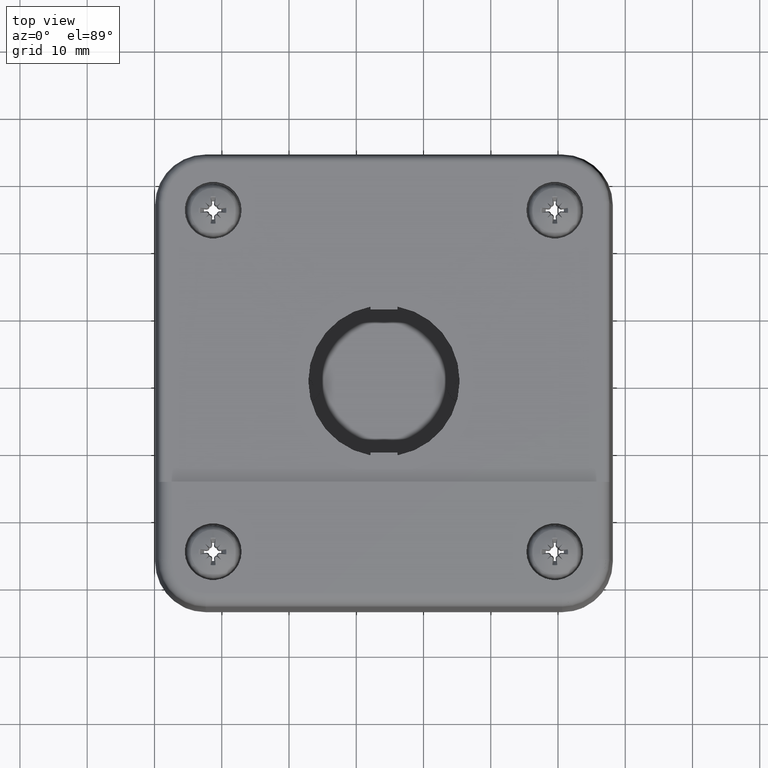
[diagram: clean part render]
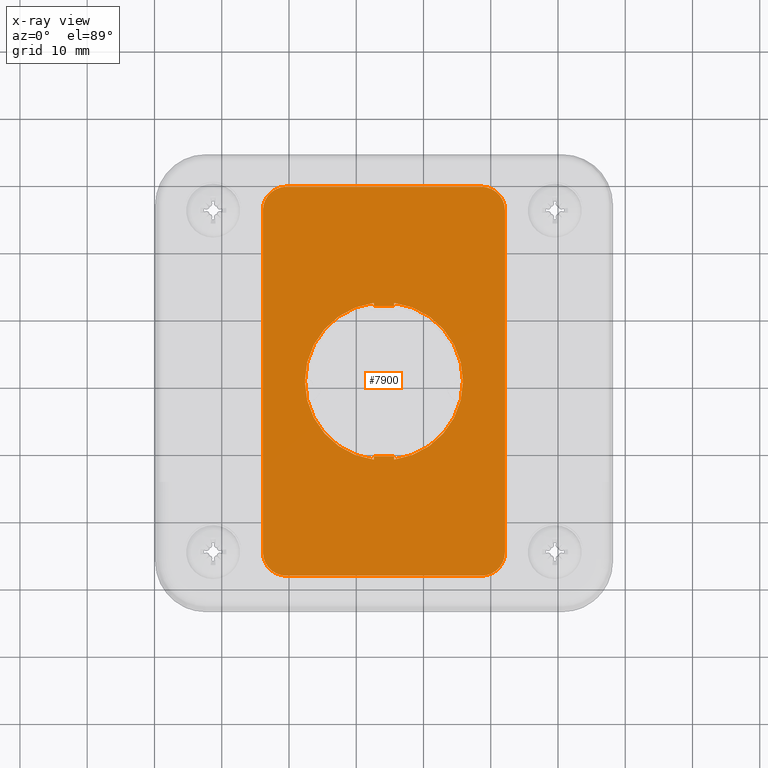
[diagram: x-ray — body ghosted, one internal face saturated and labeled with its STEP entity id]
A machine part, top view, then the same camera in x-ray: the body is ghosted and one INTERNAL B-rep face — a face not visible from any outside direction — is saturated and labeled: STEP entity #7900.
In plain terms, the highlighted planar face has unit normal (0, -0, -1).
Its self-contained STEP definition (entity closure, byte-faithful):
#6440=CARTESIAN_POINT('',(-18.933605584055147,-27.638618122439304,2.899999999999998));
#6441=VERTEX_POINT('',#6440);
#6448=CARTESIAN_POINT('',(-15.433605584055147,-31.138618122439304,2.899999999999998));
#6449=VERTEX_POINT('',#6448);
#6450=CARTESIAN_POINT('',(-15.433605584055147,-27.638618122439304,2.899999999999998));
#6451=DIRECTION('',(0.0,0.0,-1.0));
#6452=DIRECTION('',(1.0,0.0,0.0));
#6453=AXIS2_PLACEMENT_3D('',#6450,#6451,#6452);
#6454=CIRCLE('',#6453,3.499999999999996);
#6455=EDGE_CURVE('',#6441,#6449,#6454,.F.);
#7211=CARTESIAN_POINT('',(-2.433605584055146,9.438962329751092,2.899999999999999));
#7212=VERTEX_POINT('',#7211);
#7213=CARTESIAN_POINT('',(-2.433605584055146,8.935100308944428,2.899999999999999));
#7214=VERTEX_POINT('',#7213);
#7215=CARTESIAN_POINT('',(-2.433605584055146,9.438962329751092,2.899999999999999));
#7216=DIRECTION('',(0.0,-1.0,0.0));
#7217=VECTOR('',#7216,0.503862020806665);
#7218=LINE('',#7215,#7217);
#7219=EDGE_CURVE('',#7212,#7214,#7218,.T.);
#7242=CARTESIAN_POINT('',(-2.433605584055150,-13.868761711862238,2.899999999999999));
#7243=VERTEX_POINT('',#7242);
#7244=CARTESIAN_POINT('',(-0.933605584055148,-2.214899691055574,2.899999999999999));
#7245=DIRECTION('',(0.0,0.0,-1.000000000000000));
#7246=DIRECTION('',(0.177777777777778,0.984070658910424,0.0));
#7247=AXIS2_PLACEMENT_3D('',#7244,#7245,#7246);
#7248=CIRCLE('',#7247,11.750000000000002);
#7249=EDGE_CURVE('',#7243,#7212,#7248,.T.);
#7267=CARTESIAN_POINT('',(-2.433605584055150,-13.364899691055570,2.899999999999999));
#7268=VERTEX_POINT('',#7267);
#7269=CARTESIAN_POINT('',(-2.433605584055150,-13.364899691055570,2.899999999999999));
#7270=DIRECTION('',(0.0,-1.0,0.0));
#7271=VECTOR('',#7270,0.503862020806668);
#7272=LINE('',#7269,#7271);
#7273=EDGE_CURVE('',#7268,#7243,#7272,.T.);
#7291=CARTESIAN_POINT('',(0.566394415944849,-13.364899691055573,2.899999999999999));
#7292=VERTEX_POINT('',#7291);
#7293=CARTESIAN_POINT('',(0.566394415944849,-13.364899691055573,2.899999999999999));
#7294=DIRECTION('',(-1.0,0.0,0.0));
#7295=VECTOR('',#7294,2.999999999999999);
#7296=LINE('',#7293,#7295);
#7297=EDGE_CURVE('',#7292,#7268,#7296,.T.);
#7315=CARTESIAN_POINT('',(0.566394415944849,-13.868761711862238,2.899999999999999));
#7316=VERTEX_POINT('',#7315);
#7317=CARTESIAN_POINT('',(0.566394415944849,-13.868761711862238,2.899999999999999));
#7318=DIRECTION('',(0.0,1.0,0.0));
#7319=VECTOR('',#7318,0.503862020806665);
#7320=LINE('',#7317,#7319);
#7321=EDGE_CURVE('',#7316,#7292,#7320,.T.);
#7339=CARTESIAN_POINT('',(0.566394415944854,9.438962329751089,2.899999999999999));
#7340=VERTEX_POINT('',#7339);
#7341=CARTESIAN_POINT('',(-0.933605584055148,-2.214899691055574,2.899999999999999));
#7342=DIRECTION('',(0.0,0.0,-1.000000000000000));
#7343=DIRECTION('',(-0.177777777777778,-0.984070658910424,0.0));
#7344=AXIS2_PLACEMENT_3D('',#7341,#7342,#7343);
#7345=CIRCLE('',#7344,11.749999999999998);
#7346=EDGE_CURVE('',#7340,#7316,#7345,.T.);
#7364=CARTESIAN_POINT('',(0.566394415944854,8.935100308944428,2.899999999999999));
#7365=VERTEX_POINT('',#7364);
#7366=CARTESIAN_POINT('',(0.566394415944854,8.935100308944428,2.899999999999999));
#7367=DIRECTION('',(0.0,1.0,0.0));
#7368=VECTOR('',#7367,0.503862020806661);
#7369=LINE('',#7366,#7368);
#7370=EDGE_CURVE('',#7365,#7340,#7369,.T.);
#7388=CARTESIAN_POINT('',(-2.433605584055146,8.935100308944428,2.899999999999999));
#7389=DIRECTION('',(1.0,0.0,0.0));
#7390=VECTOR('',#7389,2.999999999999999);
#7391=LINE('',#7388,#7390);
#7392=EDGE_CURVE('',#7214,#7365,#7391,.T.);
#7694=CARTESIAN_POINT('',(13.566394415944849,-31.138618122439304,2.899999999999998));
#7695=VERTEX_POINT('',#7694);
#7702=CARTESIAN_POINT('',(17.066394415944849,-27.638618122439304,2.899999999999998));
#7703=VERTEX_POINT('',#7702);
#7704=CARTESIAN_POINT('',(13.566394415944849,-27.638618122439304,2.899999999999998));
#7705=DIRECTION('',(0.0,0.0,-1.0));
#7706=DIRECTION('',(0.0,1.0,0.0));
#7707=AXIS2_PLACEMENT_3D('',#7704,#7705,#7706);
#7708=CIRCLE('',#7707,3.499999999999998);
#7709=EDGE_CURVE('',#7695,#7703,#7708,.F.);
#7734=CARTESIAN_POINT('',(17.066394415944846,23.208818740328169,2.899999999999998));
#7735=VERTEX_POINT('',#7734);
#7736=CARTESIAN_POINT('',(17.066394415944846,23.208818740328169,2.899999999999998));
#7737=DIRECTION('',(0.0,-1.0,0.0));
#7738=VECTOR('',#7737,50.847436862767474);
#7739=LINE('',#7736,#7738);
#7740=EDGE_CURVE('',#7703,#7735,#7739,.F.);
#7766=CARTESIAN_POINT('',(13.566394415944846,26.708818740328162,2.899999999999998));
#7767=VERTEX_POINT('',#7766);
#7768=CARTESIAN_POINT('',(13.566394415944846,23.208818740328169,2.899999999999998));
#7769=DIRECTION('',(0.0,0.0,-1.0));
#7770=DIRECTION('',(-1.0,0.0,0.0));
#7771=AXIS2_PLACEMENT_3D('',#7768,#7769,#7770);
#7772=CIRCLE('',#7771,3.499999999999998);
#7773=EDGE_CURVE('',#7735,#7767,#7772,.F.);
#7798=CARTESIAN_POINT('',(-15.433605584055158,26.708818740328162,2.899999999999998));
#7799=VERTEX_POINT('',#7798);
#7800=CARTESIAN_POINT('',(-15.433605584055158,26.708818740328162,2.899999999999998));
#7801=DIRECTION('',(1.0,0.0,0.0));
#7802=VECTOR('',#7801,29.000000000000004);
#7803=LINE('',#7800,#7802);
#7804=EDGE_CURVE('',#7767,#7799,#7803,.F.);
#7830=CARTESIAN_POINT('',(-18.933605584055158,23.208818740328169,2.899999999999998));
#7831=VERTEX_POINT('',#7830);
#7832=CARTESIAN_POINT('',(-15.433605584055158,23.208818740328169,2.899999999999998));
#7833=DIRECTION('',(0.0,0.0,-1.0));
#7834=DIRECTION('',(0.0,-1.0,0.0));
#7835=AXIS2_PLACEMENT_3D('',#7832,#7833,#7834);
#7836=CIRCLE('',#7835,3.499999999999996);
#7837=EDGE_CURVE('',#7799,#7831,#7836,.F.);
#7860=CARTESIAN_POINT('',(-18.933605584055147,-27.638618122439304,2.899999999999998));
#7861=DIRECTION('',(0.0,1.0,0.0));
#7862=VECTOR('',#7861,50.847436862767474);
#7863=LINE('',#7860,#7862);
#7864=EDGE_CURVE('',#7831,#6441,#7863,.F.);
#7870=CARTESIAN_POINT('',(-0.933605584055150,-2.214899691055566,2.899999999999999));
#7871=DIRECTION('',(0.0,0.0,1.0));
#7872=DIRECTION('',(1.0,0.0,0.0));
#7873=AXIS2_PLACEMENT_3D('',#7870,#7871,#7872);
#7874=PLANE('',#7873);
#7875=ORIENTED_EDGE('',*,*,#7864,.F.);
#7876=ORIENTED_EDGE('',*,*,#7837,.F.);
#7877=ORIENTED_EDGE('',*,*,#7804,.F.);
#7878=ORIENTED_EDGE('',*,*,#7773,.F.);
#7879=ORIENTED_EDGE('',*,*,#7740,.F.);
#7880=ORIENTED_EDGE('',*,*,#7709,.F.);
#7881=CARTESIAN_POINT('',(13.566394415944849,-31.138618122439304,2.899999999999998));
#7882=DIRECTION('',(-1.0,0.0,0.0));
#7883=VECTOR('',#7882,28.999999999999996);
#7884=LINE('',#7881,#7883);
#7885=EDGE_CURVE('',#6449,#7695,#7884,.F.);
#7886=ORIENTED_EDGE('',*,*,#7885,.F.);
#7887=ORIENTED_EDGE('',*,*,#6455,.F.);
#7888=EDGE_LOOP('',(#7875,#7876,#7877,#7878,#7879,#7880,#7886,#7887));
#7889=FACE_OUTER_BOUND('',#7888,.T.);
#7890=ORIENTED_EDGE('',*,*,#7392,.F.);
#7891=ORIENTED_EDGE('',*,*,#7219,.F.);
#7892=ORIENTED_EDGE('',*,*,#7249,.F.);
#7893=ORIENTED_EDGE('',*,*,#7273,.F.);
#7894=ORIENTED_EDGE('',*,*,#7297,.F.);
#7895=ORIENTED_EDGE('',*,*,#7321,.F.);
#7896=ORIENTED_EDGE('',*,*,#7346,.F.);
#7897=ORIENTED_EDGE('',*,*,#7370,.F.);
#7898=EDGE_LOOP('',(#7890,#7891,#7892,#7893,#7894,#7895,#7896,#7897));
#7899=FACE_BOUND('',#7898,.T.);
#7900=ADVANCED_FACE('',(#7889,#7899),#7874,.F.);